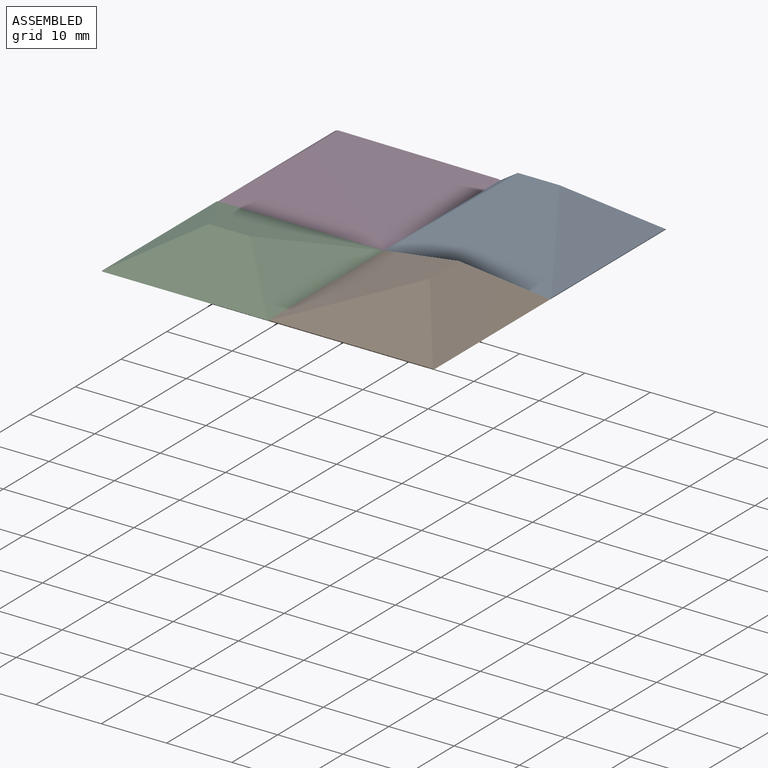
[diagram: assembled view]
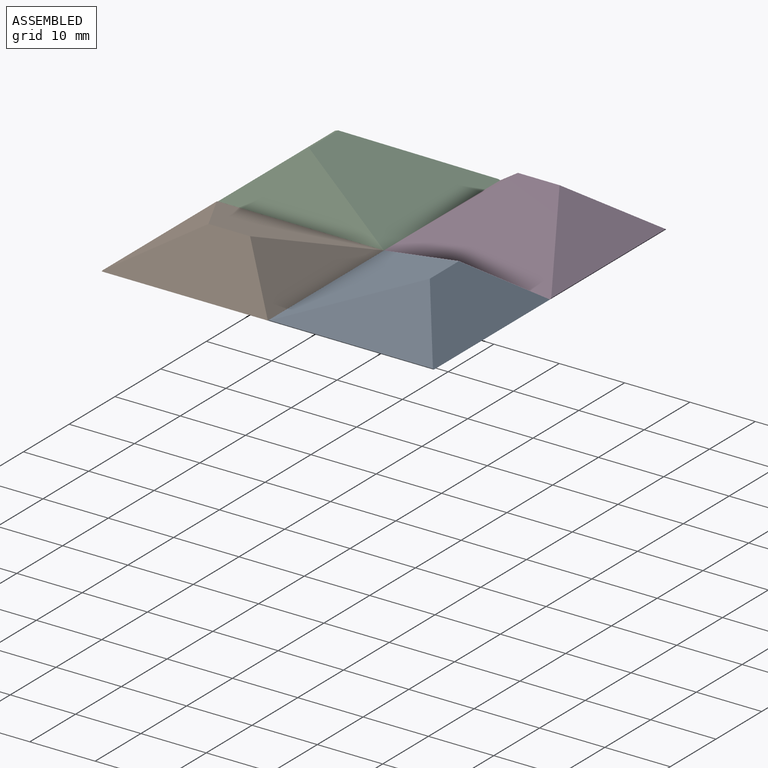
[diagram: assembled view, second angle]
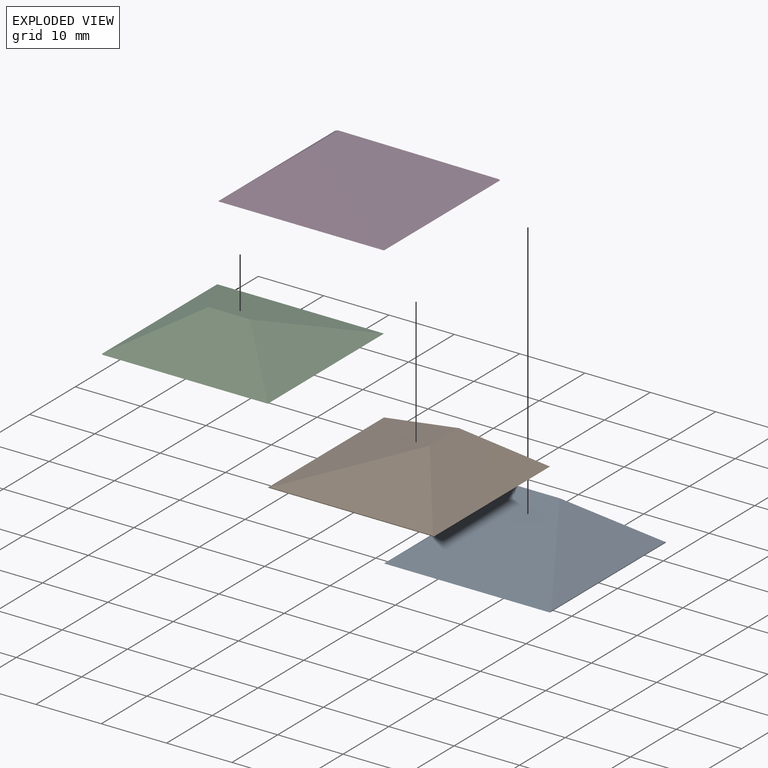
[diagram: exploded view]
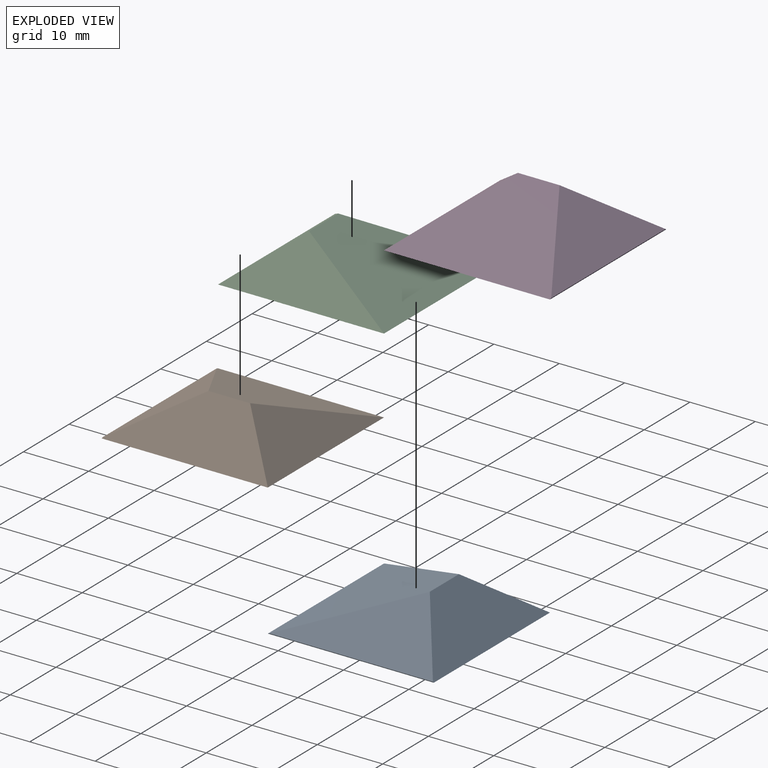
[diagram: exploded view, second angle]
ASSEMBLY  parts=4 mates=3
PART A: 7 faces, bbox 25.4x25.4x6.4 mm
  f0: plane 25.4x8.07mm, normal (-0.62,0,0.79), area 164.1mm2, adj f1,f2,f3,f4,f5,f6
  f1: plane 25.4x17.33mm, normal (0.34,0,0.94), area 294.8mm2, adj f0,f2,f3,f4,f5,f6
  f2: plane 25.4x0.1mm, normal (0,1,0), area 2.5mm2, adj f0,f1,f4,f6
  f3: plane 25.4x0mm, normal (0,-1,0), area 0.1mm2, adj f0,f1,f4,f5
  f4: plane 25.4x25.4mm, normal (0,0,-1), area 645.2mm2, adj f0,f1,f2,f3
  f5: plane 25.39x8.36mm, normal (0,-0.6,0.8), area 133.2mm2, adj f0,f1,f3
  f6: plane 25x10.67mm, normal (0,0.51,0.86), area 154.5mm2, adj f0,f1,f2
PART B: same geometry as A
PART C: same geometry as A
PART D: same geometry as A
PLACE A rot(axis=(0,0,-1),90deg) t=(5.8,-9.93,-7.45)mm
PLACE B rot(axis=(0,0,1),180deg) t=(5.8,-35.33,-7.45)mm
PLACE C rot(axis=(0,0,1),90deg) t=(-19.6,-35.33,-7.45)mm
PLACE D t=(-19.6,-9.93,-7.45)mm
MATE fastened B.f4 <-> C.f4  axis (0,0,-1) through (-6.9,-48.03,-7.45)mm
MATE fastened C.f4 <-> D.f4  axis (0,0,-1) through (-32.3,-22.63,-7.45)mm
MATE fastened A.f4 <-> D.f4  axis (0,0,-1) through (-6.9,-22.63,-7.45)mm
